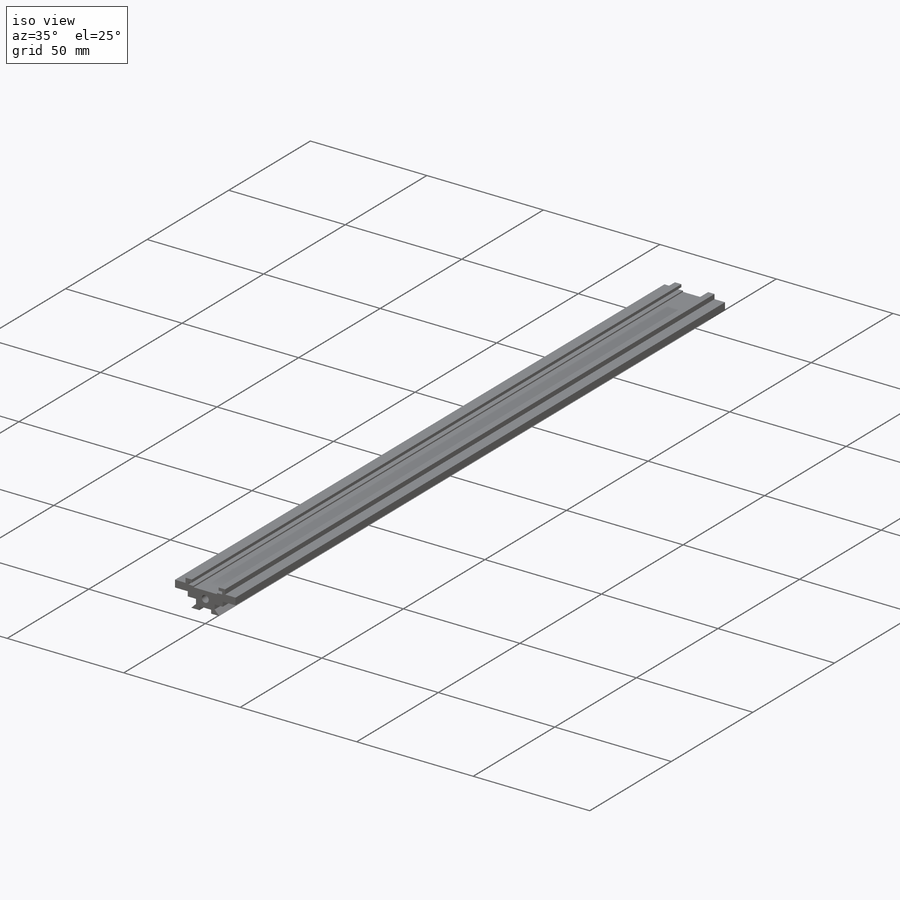
[diagram: iso view]
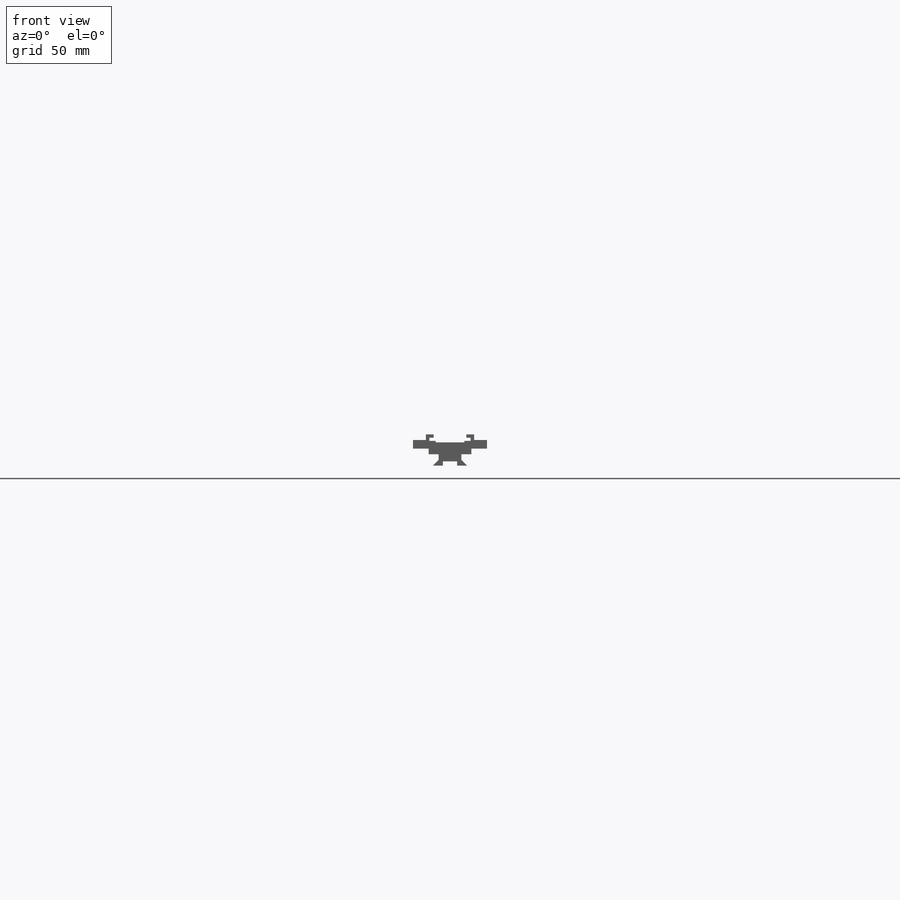
[diagram: front view]
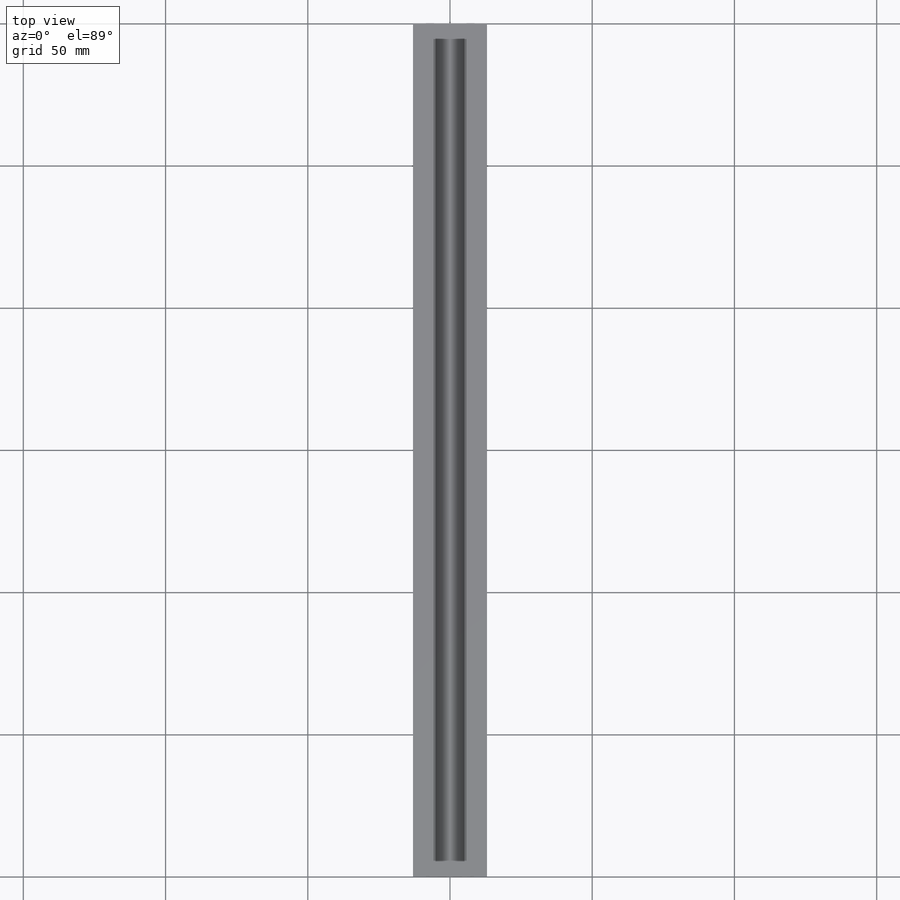
[diagram: top view]
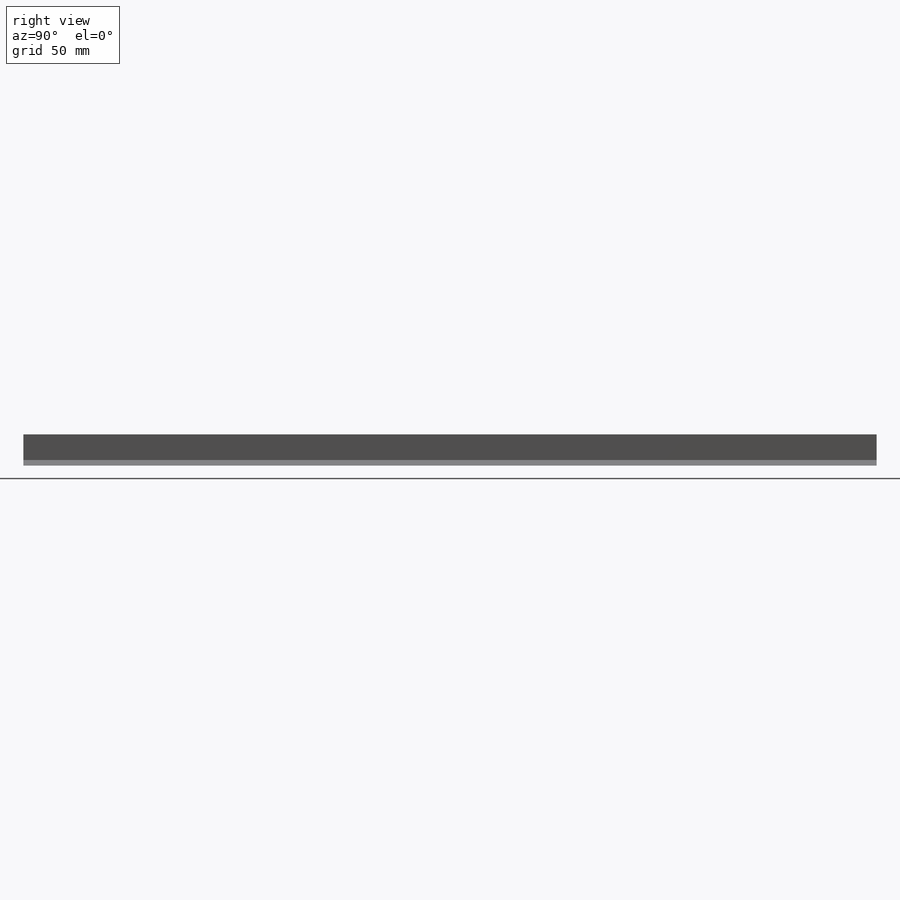
[diagram: right view]
SOLIDWORKS PART (.sldprt)
format: sldprt  version: not decoded by parser v0  size: 312,832 bytes
history: native  units: mm
features: plane x3, sketch x3, cut_extrude x2, material x1, extrude x1, mirror x1 (+13 scaffold rows collapsed)
feature tree (24):
  scaffold x13  (default folders/planes/origin — collapsed)
  material  "6061 合金"
  plane  "前视基准面"
  plane  "上视基准面"
  plane  "右视基准面"
  sketch  "草图1"  dims[c1.D1=8.0mm c1.D2=2.0mm c2.D2=90.0deg c2.D3=2.3mm c3.D3=90.0deg c4.D3=2.3mm c5.D3=90.0deg c5.D4=2.0mm c6.D4=90.0deg c7.D4=2.0mm c7.D5=2.3mm c7.D6=6.0mm c7.D7=15.0mm c7.D8=2.0mm c7.D9=26.0mm c7.D10=12.0mm c7.D11=10.1mm c7.D12=0.8mm c7.D13=1.3mm c7.D14=~2.660561mm c8.D14=25.0deg c8.D15=2.7mm c8.D13=5.4mm c8.D3=2.0mm c9.D3=100.0deg c9.D13=4.0mm c9.D4=12.0mm c9.D5=8.0mm c10.D13=4.6mm c10.D2=~2.142222mm c11.D2=90.0deg c11.D3=3.0mm c11.D6=3.0mm c11.D10=9.0mm c12.D6=9.0mm c12.D10=9.0mm c12.D3=11.5mm c13.D6=17.0mm c13.D10=14.5mm c13.D12=4.0mm c13.D13=3.0mm c13.D14=2.0mm c13.D15=0.5mm c13.D16=1.1mm c13.D17=1.2mm c13.D18=1.05mm c13.D1=0.5mm c13.D2=0.5mm c14.D1=0.5mm c14.D2=0.5mm]
  extrude  "凸台-拉伸1"  Depth=300mm
  sketch  "草图2"  dims[D1=3.0mm D2=4.0mm]
  cut_extrude  "切除-拉伸1"  Depth=6mm
  sketch  "草图4"  dims[D1=1.5mm D2=2.5mm D3=5.0mm]
  cut_extrude  "切除-拉伸3"  [1 undecoded]
  mirror  "镜向1"
decode coverage: 5 of 7 modeling features carry decoded parameters
note: ~ marks probable driven/reference dimensions
note: 1 parameter value undecoded
note: suppression state not decoded; provenance and decode notes live in map.json
